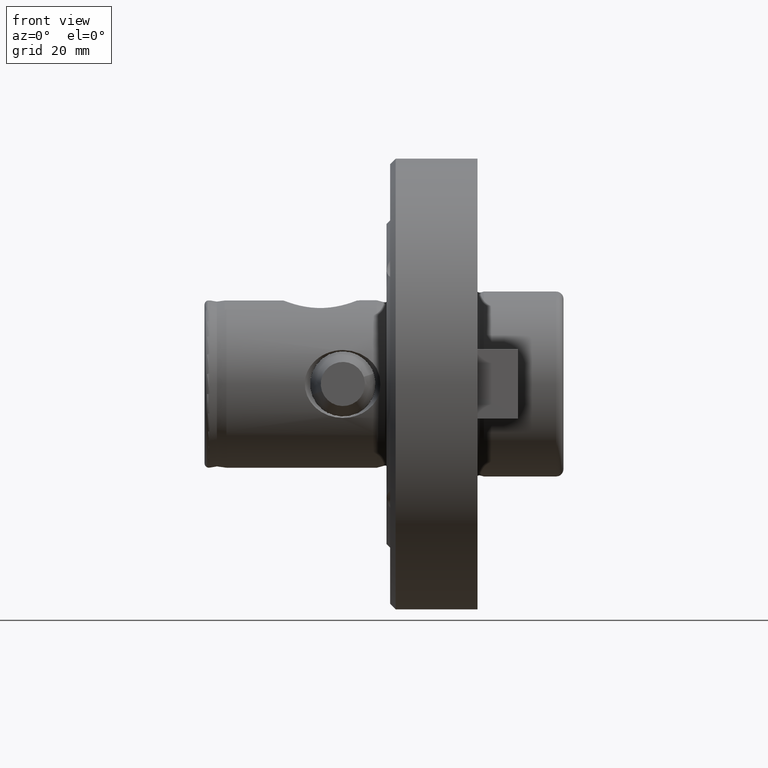
[diagram: clean part render]
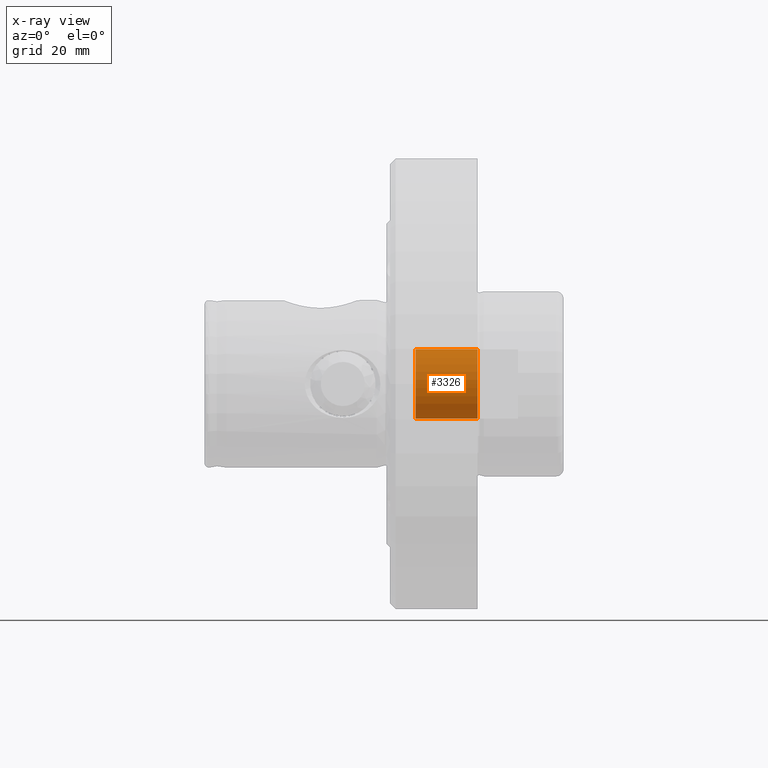
[diagram: x-ray — body ghosted, one internal face saturated and labeled with its STEP entity id]
A machine part, front view, then the same camera in x-ray: the body is ghosted and one INTERNAL B-rep face — a face not visible from any outside direction — is saturated and labeled: STEP entity #3326.
In plain terms, the highlighted cylindrical surface (edge-blend (fillet) strip) has radius 9.525 mm, axis along (1, 0, 0).
Its self-contained STEP definition (entity closure, byte-faithful):
#117 = AXIS2_PLACEMENT_3D ( 'NONE', #2359, #2360, #2351 ) ;
#280 = AXIS2_PLACEMENT_3D ( 'NONE', #3695, #3697, #3696 ) ;
#296 = AXIS2_PLACEMENT_3D ( 'NONE', #2918, #2898, #2897 ) ;
#1275 = ORIENTED_EDGE ( 'NONE', *, *, #5062, .T. ) ;
#1276 = ORIENTED_EDGE ( 'NONE', *, *, #5088, .F. ) ;
#1290 = ORIENTED_EDGE ( 'NONE', *, *, #5087, .F. ) ;
#1291 = ORIENTED_EDGE ( 'NONE', *, *, #5086, .T. ) ;
#1606 = EDGE_LOOP ( 'NONE', ( #1290, #1291, #1275, #1276 ) ) ;
#2351 = DIRECTION ( 'NONE',  ( 0.0000000000000000000, 0.0000000000000000000, -1.000000000000000000 ) ) ;
#2359 = CARTESIAN_POINT ( 'NONE',  ( 74.99999999999998600, 41.27499999999999900, 0.0000000000000000000 ) ) ;
#2360 = DIRECTION ( 'NONE',  ( 1.000000000000000000, -0.0000000000000000000, -0.0000000000000000000 ) ) ;
#2877 = DIRECTION ( 'NONE',  ( 1.000000000000000000, -0.0000000000000000000, -0.0000000000000000000 ) ) ;
#2897 = DIRECTION ( 'NONE',  ( 0.0000000000000000000, 0.0000000000000000000, -1.000000000000000000 ) ) ;
#2898 = DIRECTION ( 'NONE',  ( 1.000000000000000000, -0.0000000000000000000, -0.0000000000000000000 ) ) ;
#2913 = DIRECTION ( 'NONE',  ( 1.000000000000000000, -0.0000000000000000000, -0.0000000000000000000 ) ) ;
#2918 = CARTESIAN_POINT ( 'NONE',  ( 57.99999999999997900, 41.27499999999999900, 0.0000000000000000000 ) ) ;
#2951 = CARTESIAN_POINT ( 'NONE',  ( 74.99999999999998600, 41.27499999999999900, -9.524999999999995000 ) ) ;
#3013 = CARTESIAN_POINT ( 'NONE',  ( 74.99999999999998600, 41.27499999999999900, 9.524999999999995000 ) ) ;
#3326 = ADVANCED_FACE ( 'NONE', ( #3929 ), #3938, .F. ) ;
#3695 = CARTESIAN_POINT ( 'NONE',  ( 74.99999999999998600, 41.27499999999999900, 0.0000000000000000000 ) ) ;
#3696 = DIRECTION ( 'NONE',  ( 0.0000000000000000000, 0.0000000000000000000, -1.000000000000000000 ) ) ;
#3697 = DIRECTION ( 'NONE',  ( 1.000000000000000000, -0.0000000000000000000, -0.0000000000000000000 ) ) ;
#3929 = FACE_OUTER_BOUND ( 'NONE', #1606, .T. ) ;
#3938 = CYLINDRICAL_SURFACE ( 'NONE', #117, 9.524999999999995000 ) ;
#4250 = CIRCLE ( 'NONE', #280, 9.524999999999998600 ) ;
#4280 = VECTOR ( 'NONE', #2877, 1000.000000000000000 ) ;
#4282 = VECTOR ( 'NONE', #2913, 1000.000000000000000 ) ;
#4285 = LINE ( 'NONE', #3013, #4282 ) ;
#4287 = LINE ( 'NONE', #2951, #4280 ) ;
#4288 = CIRCLE ( 'NONE', #296, 9.524999999999991500 ) ;
#4392 = VERTEX_POINT ( 'NONE', #4957 ) ;
#4393 = VERTEX_POINT ( 'NONE', #4942 ) ;
#4394 = VERTEX_POINT ( 'NONE', #4945 ) ;
#4395 = VERTEX_POINT ( 'NONE', #4871 ) ;
#4871 = CARTESIAN_POINT ( 'NONE',  ( 74.99999999999998600, 41.27499999999999900, -9.524999999999998600 ) ) ;
#4942 = CARTESIAN_POINT ( 'NONE',  ( 57.99999999999997900, 41.27499999999999900, -9.524999999999991500 ) ) ;
#4945 = CARTESIAN_POINT ( 'NONE',  ( 74.99999999999998600, 41.27499999999999900, 9.524999999999998600 ) ) ;
#4957 = CARTESIAN_POINT ( 'NONE',  ( 57.99999999999997900, 41.27499999999999900, 9.524999999999991500 ) ) ;
#5062 = EDGE_CURVE ( 'NONE', #4394, #4395, #4250, .T. ) ;
#5086 = EDGE_CURVE ( 'NONE', #4392, #4394, #4285, .T. ) ;
#5087 = EDGE_CURVE ( 'NONE', #4392, #4393, #4288, .T. ) ;
#5088 = EDGE_CURVE ( 'NONE', #4393, #4395, #4287, .T. ) ;